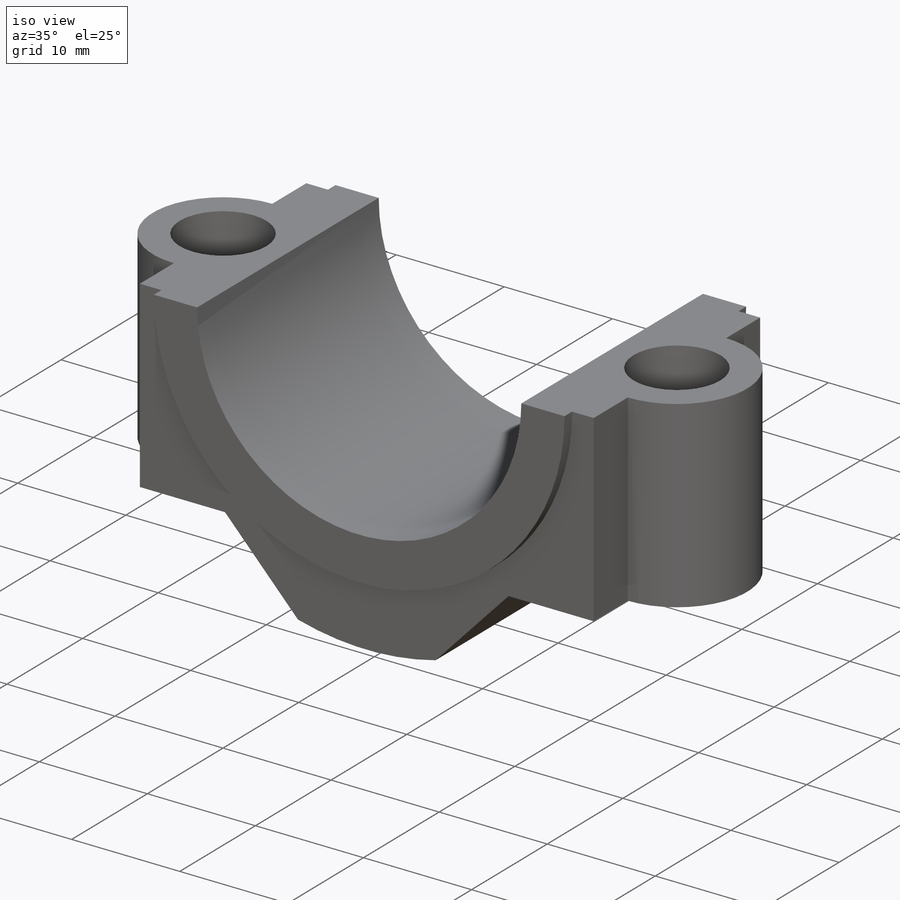
[diagram: iso view]
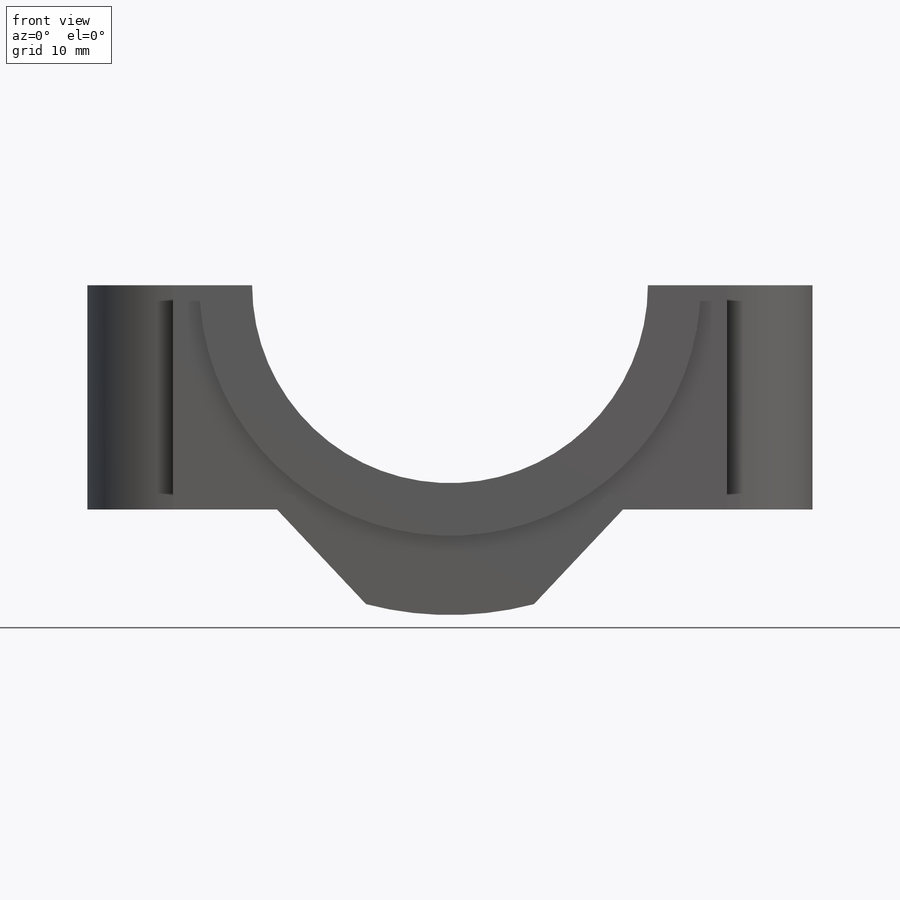
[diagram: front view]
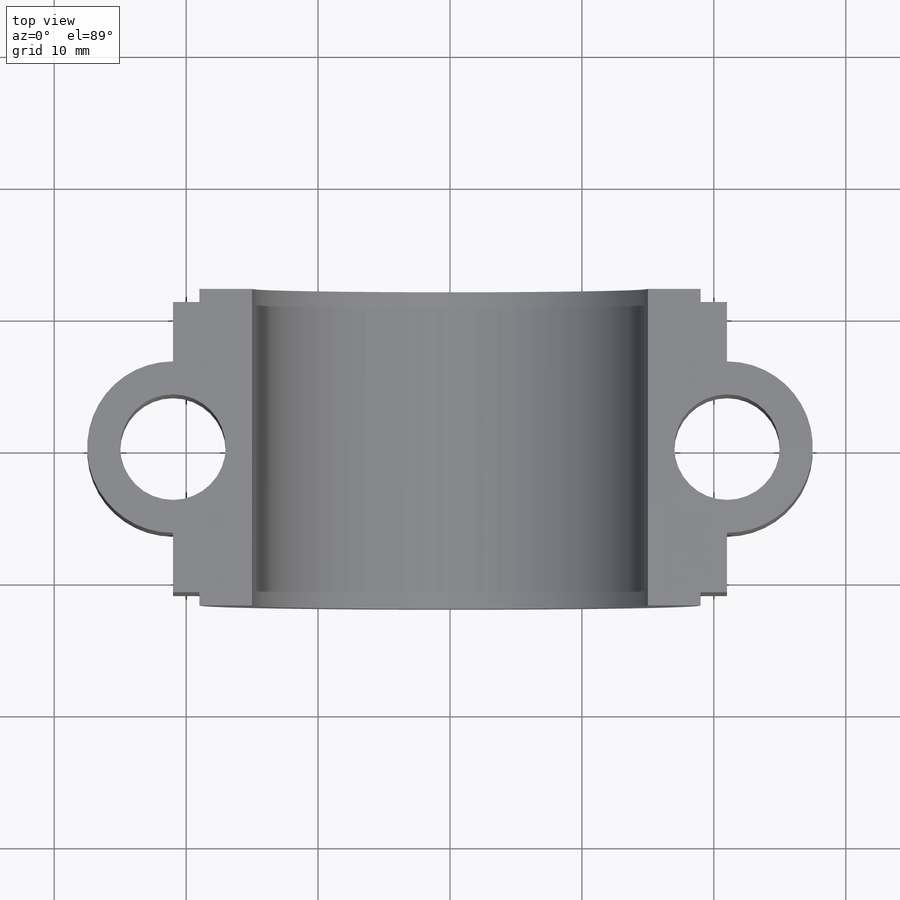
[diagram: top view]
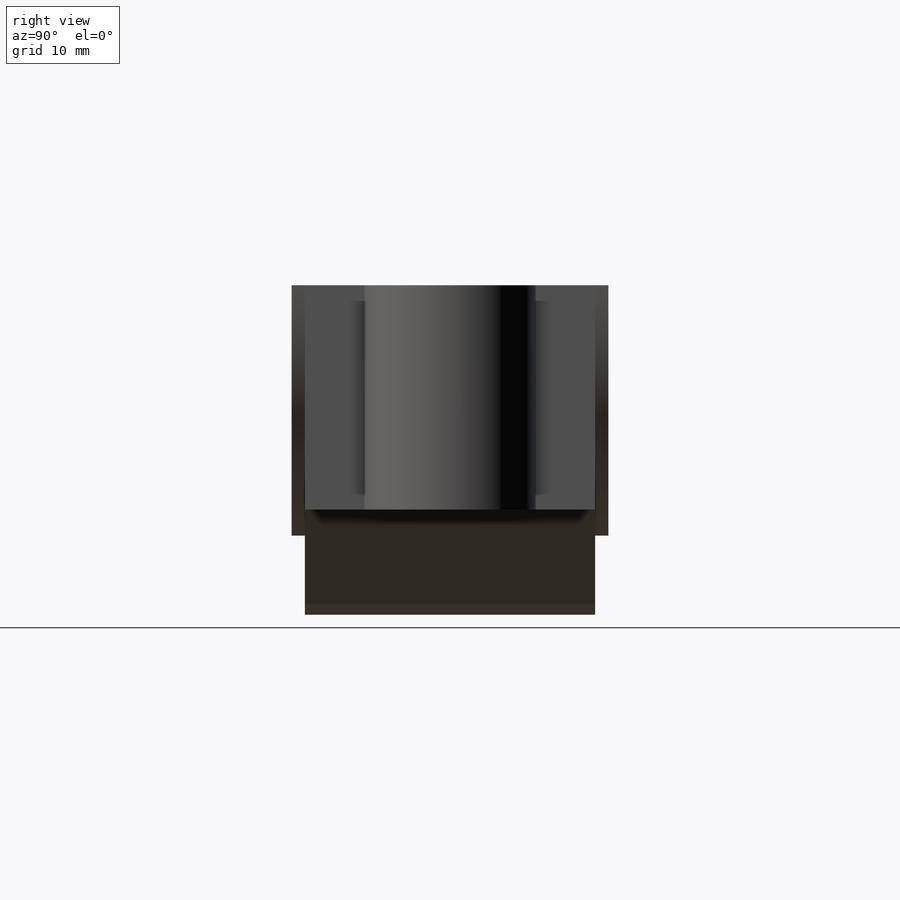
[diagram: right view]
SOLIDWORKS PART (.sldprt)
format: sldprt  version: not decoded by parser v0  size: 358,400 bytes
history: native  units: mm
features: sketch x5, plane x3, extrude x3, mirror x2, cut_extrude x2, chamfer x2, material x1 (+9 scaffold rows collapsed)
feature tree (27):
  scaffold x9  (default folders/planes/origin — collapsed)
  material  "Сталь"
  plane  "Спереди"
  plane  "Сверху"
  plane  "Справа"
  sketch  "Эскиз3"  dims[D1=30.0mm D3=50.0mm D2=95.0mm D4=55.0mm D5=30.0mm D6=30.0mm]
  extrude  "Бобышка-Вытянуть2"  Depth=11mm
  sketch  "Эскиз5"  dims[D1=1.0mm]
  extrude  "Бобышка-Вытянуть3"  Depth=1mm
  mirror  "Зеркальное отражение1"
  sketch  "Эскиз9"  dims[D1=8.0mm]
  cut_extrude  "Вырез-Вытянуть5"  [1 undecoded]
  sketch  "Эскиз10"
  cut_extrude  "Вырез-Вытянуть6"  [1 undecoded]
  mirror  "Зеркальное отражение2"
  chamfer  "Фаска1"  Distance=20mm
  chamfer  "Фаска2"  Distance=5mm
  sketch  "Эскиз11"  dims[D1=0.0mm D2=0.0mm]
  extrude  "Бобышка-Вытянуть5"  Depth=2mm
decode coverage: 9 of 14 modeling features carry decoded parameters
note: 2 parameter values undecoded
note: suppression state not decoded; provenance and decode notes live in map.json
